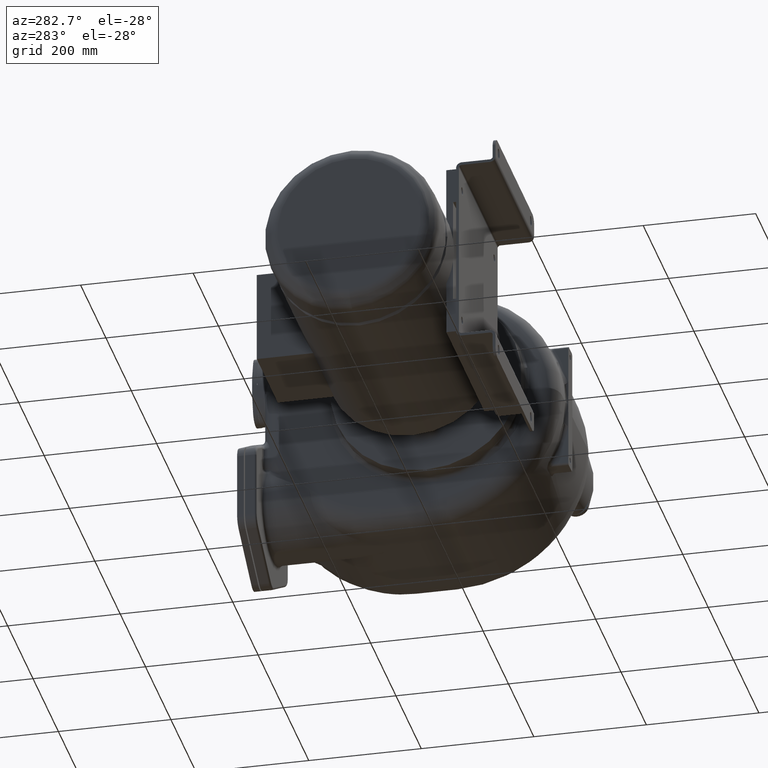
[diagram: clean part render]
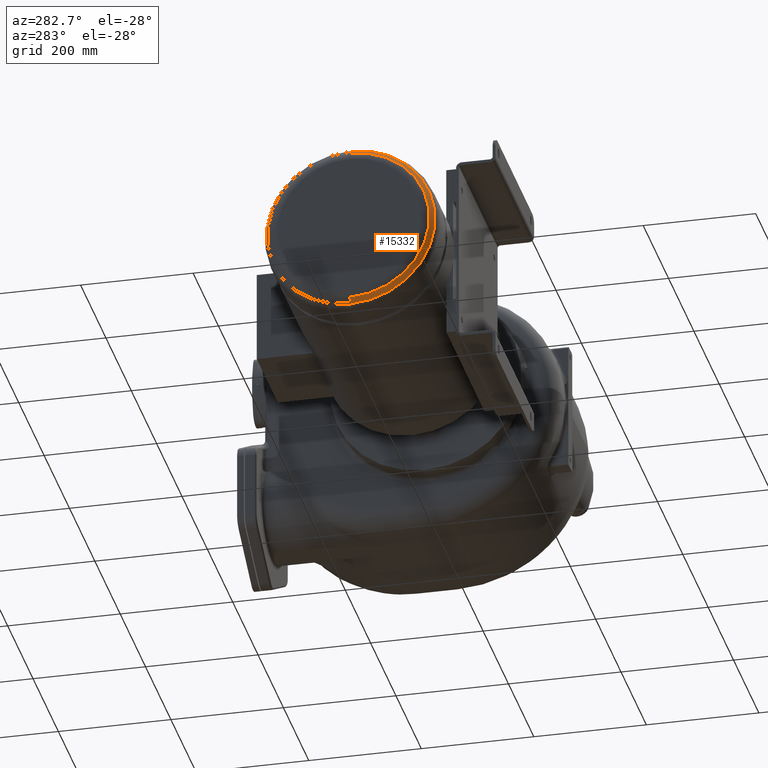
[diagram: same view with one face highlighted and labeled with its STEP entity id]
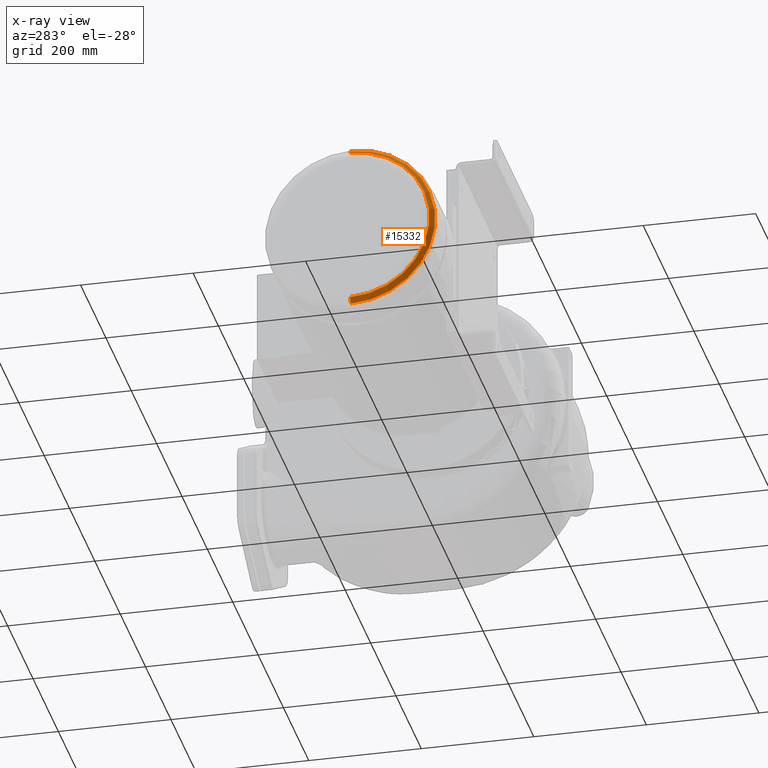
[diagram: x-ray of the same camera — body ghosted, the highlighted face saturated]
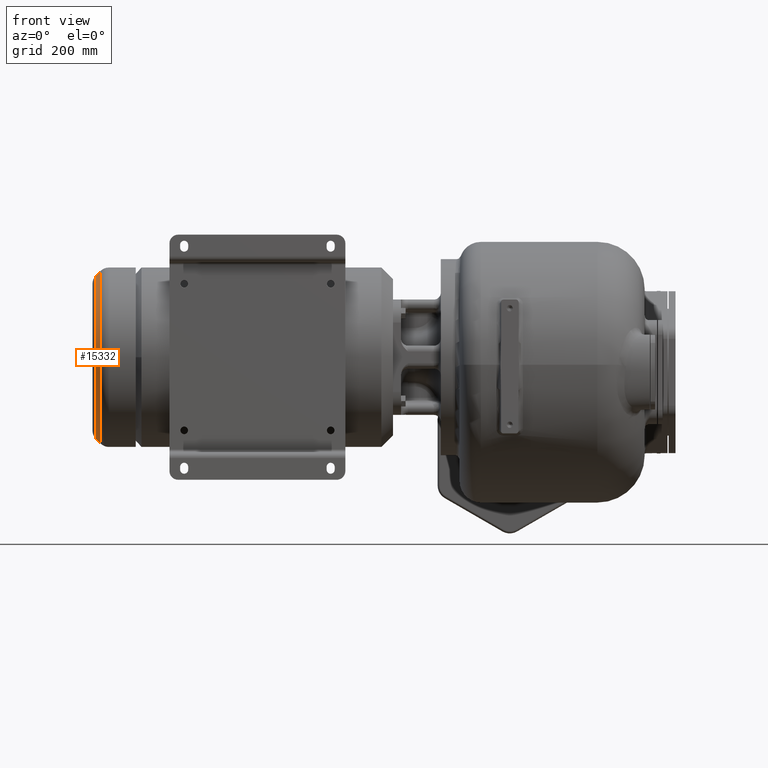
[diagram: same view with one face highlighted and labeled with its STEP entity id]
A machine part, auxiliary view. The second image highlights one B-rep face of the part: STEP entity #15332.
The next image is the same camera in x-ray: the body ghosted, the highlighted face saturated — about 0% of this face is hidden behind the body in this view.
A second angle (front view) of the same face is appended — the face is thin or edge-on in the first view.
In plain terms, the highlighted conical surface has half-angle 45 deg.
Its self-contained STEP definition (entity closure, byte-faithful):
#877=CARTESIAN_POINT('',(-7.093579048318E2,2.3E2,4.263258414561E-14));
#878=DIRECTION('',(1.E0,0.E0,0.E0));
#879=DIRECTION('',(0.E0,-1.824186573842E-10,1.E0));
#880=AXIS2_PLACEMENT_3D('',#877,#878,#879);
#882=DIRECTION('',(7.071066899167E-1,6.963608638881E-10,-7.071068724564E-1));
#883=VECTOR('',#882,1.171567563348E1);
#884=CARTESIAN_POINT('',(-7.176421374491E2,2.300000001401E2,-1.413578990424E2));
#885=LINE('',#884,#883);
#886=CARTESIAN_POINT('',(-7.176421374491E2,2.3E2,4.263258414561E-14));
#887=DIRECTION('',(-1.E0,0.E0,0.E0));
#888=DIRECTION('',(0.E0,1.824183733377E-10,-1.E0));
#889=AXIS2_PLACEMENT_3D('',#886,#887,#888);
#896=DIRECTION('',(7.071066899167E-1,-6.963560119768E-10,7.071068724564E-1));
#897=VECTOR('',#896,1.171567563348E1);
#898=CARTESIAN_POINT('',(-7.176421374491E2,2.299999998599E2,1.413578990424E2));
#899=LINE('',#898,#897);
#13553=CARTESIAN_POINT('',(-7.093579048318E2,2.299999999727E2,
1.496421337983E2));
#13554=CARTESIAN_POINT('',(-7.093579048318E2,2.300000000273E2,
-1.496421337983E2));
#13555=VERTEX_POINT('',#13553);
#13556=VERTEX_POINT('',#13554);
#13561=CARTESIAN_POINT('',(-7.176421374491E2,2.300000000258E2,
-1.413578990424E2));
#13562=CARTESIAN_POINT('',(-7.176421374491E2,2.299999999742E2,
1.413578990424E2));
#13563=VERTEX_POINT('',#13561);
#13564=VERTEX_POINT('',#13562);
#15318=CARTESIAN_POINT('',(-7.135000211405E2,2.3E2,4.263258414561E-14));
#15319=DIRECTION('',(1.E0,0.E0,0.E0));
#15320=DIRECTION('',(0.E0,0.E0,-1.E0));
#15321=AXIS2_PLACEMENT_3D('',#15318,#15319,#15320);
#15322=CONICAL_SURFACE('',#15321,1.455000164204E2,4.500000739546E1);
#15323=ORIENTED_EDGE('',*,*,#15300,.T.);
#15325=ORIENTED_EDGE('',*,*,#15324,.F.);
#15327=ORIENTED_EDGE('',*,*,#15326,.T.);
#15329=ORIENTED_EDGE('',*,*,#15328,.T.);
#15330=EDGE_LOOP('',(#15323,#15325,#15327,#15329));
#15331=FACE_OUTER_BOUND('',#15330,.F.);
#15332=ADVANCED_FACE('',(#15331),#15322,.T.);
#881=CIRCLE('',#880,1.496421337983E2);
#890=CIRCLE('',#889,1.413578990424E2);
#15300=EDGE_CURVE('',#13555,#13556,#881,.T.);
#15324=EDGE_CURVE('',#13563,#13556,#885,.T.);
#15326=EDGE_CURVE('',#13563,#13564,#890,.T.);
#15328=EDGE_CURVE('',#13564,#13555,#899,.T.);